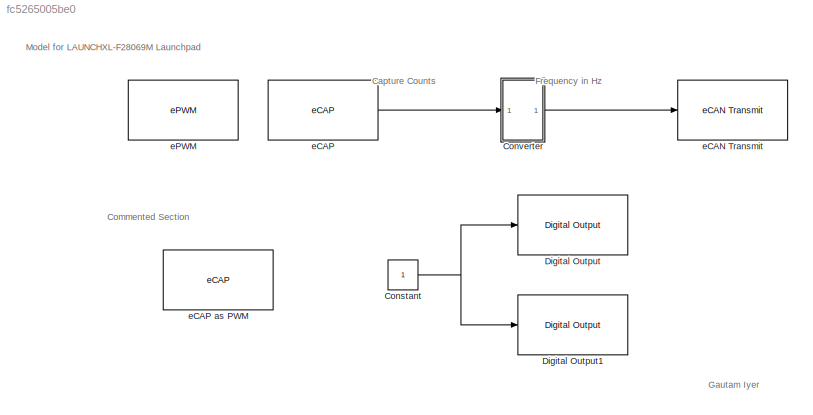
MODEL slx_fc5265005be0
KIND model
CONFIG AbsTol = auto
CONFIG EnableMultiTasking = on
CONFIG FixedStep = auto
CONFIG MaxStep = auto
CONFIG MinStep = auto
CONFIG RelTol = 1e-3
CONFIG SampleTimeConstraint = Unconstrained
CONFIG Solver = FixedStepDiscrete
CONFIG SolverName = FixedStepDiscrete
CONFIG StartTime = 0.0
CONFIG StopTime = 10.0
BLOCK [Constant] Constant
  OutDataTypeStr = boolean
  SampleTime = 1.0
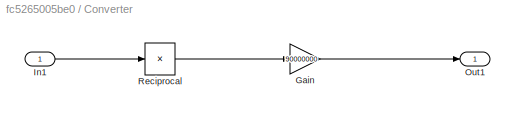
BLOCK [SubSystem] Converter
  Ports = [1, 1]
  RequestExecContextInheritance = off
  Variant = off
BLOCK [Gain] Converter/Gain
  Gain = 90000000
  OutDataTypeStr = uint32
  ParamDataTypeStr = Inherit: Inherit via internal rule
  RndMeth = Nearest
  SaturateOnIntegerOverflow = off
BLOCK [Inport] Converter/In1
  IconDisplay = Port number
BLOCK [Outport] Converter/Out1
  IconDisplay = Port number
BLOCK [Product] Converter/Reciprocal
  InputSameDT = off
  Inputs = /
  OutDataTypeStr = double
  Ports = [1, 1]
  RndMeth = Nearest
  SaturateOnIntegerOverflow = off
BLOCK [Reference] Digital Output  REF=c2806xlib/Digital Output
  Ports = [1]
  SourceBlock = c2806xlib/Digital Output
  SourceType = C2806x GPIO Digital Output
  UserDataPersistent = on
BLOCK [Reference] Digital Output1  REF=c2806xlib/Digital Output
  Ports = [1]
  SourceBlock = c2806xlib/Digital Output
  SourceType = C2806x GPIO Digital Output
  UserDataPersistent = on
BLOCK [Reference] eCAN Transmit  REF=c280xlib/eCAN Transmit
  Ports = [1]
  SourceBlock = c280xlib/eCAN Transmit
  SourceType = C28x eCAN Transmit
BLOCK [Reference] eCAP  REF=c280xlib/eCAP
  Ports = [1, 1]
  SourceBlock = c280xlib/eCAP
  SourceType = C28x eCAP
BLOCK [Reference] eCAP as PWM  REF=c280xlib/eCAP
  Commented = on
  Ports = []
  SourceBlock = c280xlib/eCAP
  SourceType = C28x eCAP
BLOCK [Reference] ePWM  REF=c2802xlib/ePWM
  Ports = []
  SourceBlock = c2802xlib/ePWM
  SourceType = C2802x/03x/05x/06x/M3x/37x/07x ePWM
  UserDataPersistent = on
ANNOTATION (root): Gautam Iyer
ANNOTATION (root): Capture Counts
ANNOTATION (root): Commented Section
ANNOTATION (root): Frequency in Hz
ANNOTATION (root): Model for LAUNCHXL-F28069M Launchpad
NET Constant:1 -> Digital Output1:1, Digital Output:1
LINE Converter/Gain:1 -> Converter/Out1:1
LINE Converter/In1:1 -> Converter/Reciprocal:1
LINE Converter/Reciprocal:1 -> Converter/Gain:1
LINE Converter:1 -> eCAN Transmit:1
LINE eCAP:1 -> Converter:1
note: NET lines group one-source signal fan-out (src -> all destinations, sorted); 1:1 wires keep LINE
